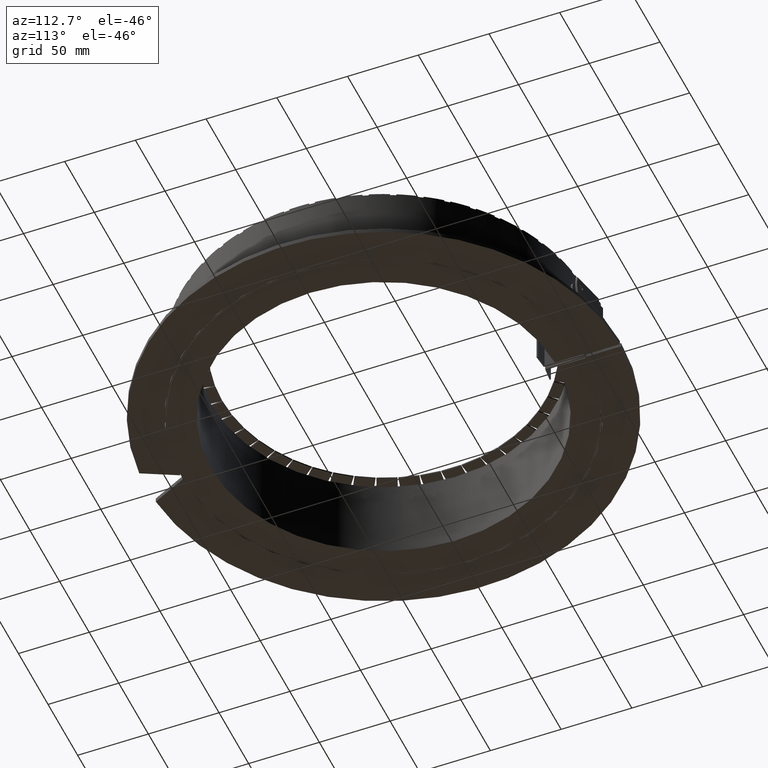
[diagram: clean part render]
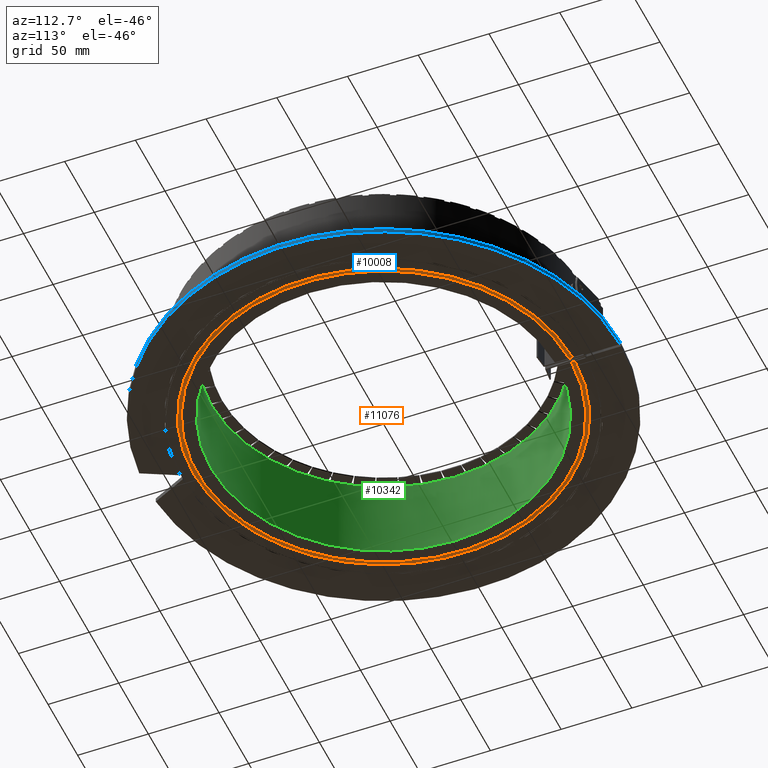
[diagram: same view with three faces highlighted in distinct colors, each labeled with its STEP entity id]
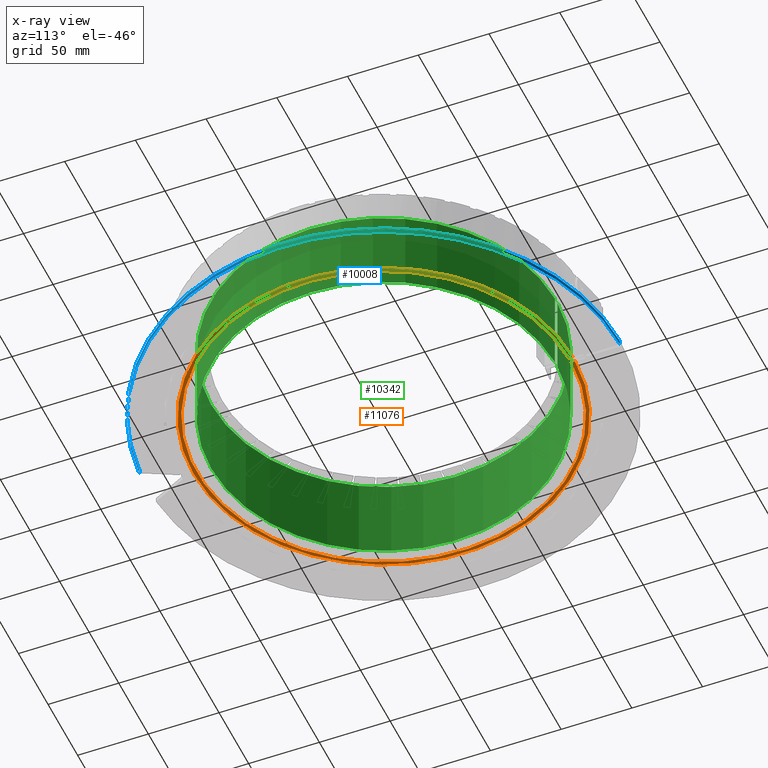
[diagram: x-ray of the same camera — body ghosted, the three highlighted faces saturated]
A machine part, auxiliary view with three faces highlighted in distinct colors.
The next image is the same camera in x-ray (body ghosted, the three faces saturated) — at least one of them is partly hidden behind the body in this view.
Their STEP definitions:

[orange] entity #11076 — the highlighted planar face has unit normal (0, 0, 1).
#10580=CARTESIAN_POINT('',(-2.000000000000017,131.98484761517133,-29.950000000000003));
#10581=VERTEX_POINT('',#10580);
#10611=CARTESIAN_POINT('',(1.999999999999983,131.98484761517133,-29.950000000000003));
#10612=VERTEX_POINT('',#10611);
#10660=CARTESIAN_POINT('',(-8.312795E-016,0.0,-29.950000000000003));
#10661=DIRECTION('',(-6.371803E-021,4.204908E-019,-1.0));
#10662=DIRECTION('',(0.015151515151515,-0.999885209205843,-4.205390E-019));
#10663=AXIS2_PLACEMENT_3D('',#10660,#10661,#10662);
#10664=CIRCLE('',#10663,131.99999999999997);
#10665=EDGE_CURVE('',#10612,#10581,#10664,.T.);
#10916=CARTESIAN_POINT('',(1.999999999999983,134.48512928944973,-29.950000000000003));
#10917=VERTEX_POINT('',#10916);
#10947=CARTESIAN_POINT('',(-2.000000000000017,134.48512928944973,-29.950000000000003));
#10948=VERTEX_POINT('',#10947);
#10997=CARTESIAN_POINT('',(-8.312795E-016,0.0,-29.950000000000003));
#10998=DIRECTION('',(6.137135E-021,-4.126767E-019,1.0));
#10999=DIRECTION('',(-0.014869888475837,0.99988943709628,4.127223E-019));
#11000=AXIS2_PLACEMENT_3D('',#10997,#10998,#10999);
#11001=CIRCLE('',#11000,134.50000000000003);
#11002=EDGE_CURVE('',#10948,#10917,#11001,.T.);
#11014=CARTESIAN_POINT('',(-2.000000000000017,131.98484761517133,-29.950000000000003));
#11015=DIRECTION('',(0.0,1.0,0.0));
#11016=VECTOR('',#11015,2.500281674278369);
#11017=LINE('',#11014,#11016);
#11018=EDGE_CURVE('',#10581,#10948,#11017,.T.);
#11036=CARTESIAN_POINT('',(1.999999999999983,134.48512928944973,-29.950000000000003));
#11037=DIRECTION('',(0.0,-1.0,0.0));
#11038=VECTOR('',#11037,2.500281674278369);
#11039=LINE('',#11036,#11038);
#11040=EDGE_CURVE('',#10917,#10612,#11039,.T.);
#11065=CARTESIAN_POINT('',(3.007404E-015,-0.106193006033249,-29.950000000000003));
#11066=DIRECTION('',(0.0,0.0,1.0));
#11067=DIRECTION('',(1.0,0.0,0.0));
#11068=AXIS2_PLACEMENT_3D('',#11065,#11066,#11067);
#11069=PLANE('',#11068);
#11070=ORIENTED_EDGE('',*,*,#11002,.F.);
#11071=ORIENTED_EDGE('',*,*,#11018,.F.);
#11072=ORIENTED_EDGE('',*,*,#10665,.F.);
#11073=ORIENTED_EDGE('',*,*,#11040,.F.);
#11074=EDGE_LOOP('',(#11070,#11071,#11072,#11073));
#11075=FACE_OUTER_BOUND('',#11074,.T.);
#11076=ADVANCED_FACE('',(#11075),#11069,.F.);

[blue] entity #10008 — the highlighted cylindrical surface (partial cylindrical patch) has radius 167.5 mm, axis along (-0, -0, 1).
#9886=CARTESIAN_POINT('',(13.932807335226725,-166.91952216490279,-26.949999999999996));
#9887=VERTEX_POINT('',#9886);
#9904=CARTESIAN_POINT('',(13.932807335226725,-166.91952216490279,-29.949999999999992));
#9905=VERTEX_POINT('',#9904);
#9912=CARTESIAN_POINT('',(13.932807335226725,-166.91952216490279,-29.949999999999992));
#9913=DIRECTION('',(0.0,0.0,1.0));
#9914=VECTOR('',#9913,3.0);
#9915=LINE('',#9912,#9914);
#9916=EDGE_CURVE('',#9905,#9887,#9915,.T.);
#9959=CARTESIAN_POINT('',(0.999999999999893,167.49701489877364,-26.949999999999996));
#9960=VERTEX_POINT('',#9959);
#9967=CARTESIAN_POINT('',(0.999999999999893,167.49701489877364,-29.949999999999992));
#9968=VERTEX_POINT('',#9967);
#9969=CARTESIAN_POINT('',(0.999999999999893,167.49701489877364,-29.949999999999992));
#9970=DIRECTION('',(0.0,0.0,1.0));
#9971=VECTOR('',#9970,3.0);
#9972=LINE('',#9969,#9971);
#9973=EDGE_CURVE('',#9968,#9960,#9972,.T.);
#9985=CARTESIAN_POINT('',(-2.455325E-032,7.771043E-033,-29.949999999999992));
#9986=DIRECTION('',(-7.047314E-018,-4.105367E-048,1.0));
#9987=DIRECTION('',(-0.083180939314786,0.996534460685987,-5.862022E-019));
#9988=AXIS2_PLACEMENT_3D('',#9985,#9986,#9987);
#9989=CYLINDRICAL_SURFACE('',#9988,167.50000000000003);
#9990=CARTESIAN_POINT('',(-2.114194E-017,7.771043E-033,-26.949999999999996));
#9991=DIRECTION('',(4.876085E-020,-5.841707E-019,-1.0));
#9992=DIRECTION('',(-0.083180939314786,0.996534460685987,-5.862022E-019));
#9993=AXIS2_PLACEMENT_3D('',#9990,#9991,#9992);
#9994=CIRCLE('',#9993,167.50000000000003);
#9995=EDGE_CURVE('',#9960,#9887,#9994,.T.);
#9996=ORIENTED_EDGE('',*,*,#9995,.T.);
#9997=ORIENTED_EDGE('',*,*,#9916,.F.);
#9998=CARTESIAN_POINT('',(-2.455325E-032,7.771043E-033,-29.949999999999992));
#9999=DIRECTION('',(4.876085E-020,-5.841707E-019,-1.0));
#10000=DIRECTION('',(-0.083180939314786,0.996534460685987,-5.862022E-019));
#10001=AXIS2_PLACEMENT_3D('',#9998,#9999,#10000);
#10002=CIRCLE('',#10001,167.50000000000003);
#10003=EDGE_CURVE('',#9968,#9905,#10002,.T.);
#10004=ORIENTED_EDGE('',*,*,#10003,.F.);
#10005=ORIENTED_EDGE('',*,*,#9973,.T.);
#10006=EDGE_LOOP('',(#9996,#9997,#10004,#10005));
#10007=FACE_OUTER_BOUND('',#10006,.T.);
#10008=ADVANCED_FACE('',(#10007),#9989,.T.);

[green] entity #10342 — the highlighted cylindrical surface (partial cylindrical patch) has radius 122 mm, axis along (0, 0, 1).
#10246=CARTESIAN_POINT('',(1.999999999999984,121.98360545581525,-29.950000000000003));
#10247=VERTEX_POINT('',#10246);
#10254=CARTESIAN_POINT('',(1.999999999999986,121.98360545581525,30.049999999999997));
#10255=VERTEX_POINT('',#10254);
#10256=CARTESIAN_POINT('',(1.999999999999984,121.98360545581525,-29.950000000000003));
#10257=DIRECTION('',(0.0,0.0,1.0));
#10258=VECTOR('',#10257,60.0);
#10259=LINE('',#10256,#10258);
#10260=EDGE_CURVE('',#10247,#10255,#10259,.T.);
#10284=CARTESIAN_POINT('',(-2.000000000000016,121.98360545581525,-29.950000000000003));
#10285=VERTEX_POINT('',#10284);
#10302=CARTESIAN_POINT('',(-2.000000000000015,121.98360545581525,30.049999999999997));
#10303=VERTEX_POINT('',#10302);
#10310=CARTESIAN_POINT('',(-2.000000000000016,121.98360545581525,-29.950000000000003));
#10311=DIRECTION('',(0.0,0.0,1.0));
#10312=VECTOR('',#10311,60.0);
#10313=LINE('',#10310,#10312);
#10314=EDGE_CURVE('',#10285,#10303,#10313,.T.);
#10319=CARTESIAN_POINT('',(-8.312795E-016,0.0,-29.950000000000003));
#10320=DIRECTION('',(2.775558E-017,0.0,1.0));
#10321=DIRECTION('',(0.016393442622951,-0.999865618490289,-4.550094E-019));
#10322=AXIS2_PLACEMENT_3D('',#10319,#10320,#10321);
#10323=CYLINDRICAL_SURFACE('',#10322,122.00000000000003);
#10324=CARTESIAN_POINT('',(-8.312795E-016,0.0,-29.950000000000003));
#10325=DIRECTION('',(-7.459171E-021,4.549483E-019,-1.0));
#10326=DIRECTION('',(0.016393442622951,-0.999865618490289,-4.550094E-019));
#10327=AXIS2_PLACEMENT_3D('',#10324,#10325,#10326);
#10328=CIRCLE('',#10327,122.00000000000003);
#10329=EDGE_CURVE('',#10247,#10285,#10328,.T.);
#10330=ORIENTED_EDGE('',*,*,#10329,.T.);
#10331=ORIENTED_EDGE('',*,*,#10314,.T.);
#10332=CARTESIAN_POINT('',(8.340550E-016,0.0,30.049999999999997));
#10333=DIRECTION('',(-7.459171E-021,4.549483E-019,-1.0));
#10334=DIRECTION('',(0.016393442622951,-0.999865618490289,-4.550094E-019));
#10335=AXIS2_PLACEMENT_3D('',#10332,#10333,#10334);
#10336=CIRCLE('',#10335,122.00000000000003);
#10337=EDGE_CURVE('',#10255,#10303,#10336,.T.);
#10338=ORIENTED_EDGE('',*,*,#10337,.F.);
#10339=ORIENTED_EDGE('',*,*,#10260,.F.);
#10340=EDGE_LOOP('',(#10330,#10331,#10338,#10339));
#10341=FACE_OUTER_BOUND('',#10340,.T.);
#10342=ADVANCED_FACE('',(#10341),#10323,.F.);